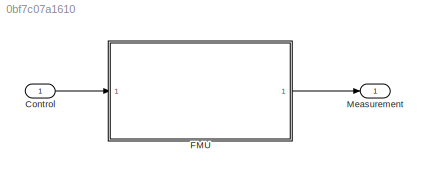
MODEL slx_0bf7c07a1610
KIND model
CONFIG AbsTol = auto
CONFIG EnableMultiTasking = off
CONFIG FixedStep = 1e-06
CONFIG MaxStep = auto
CONFIG MinStep = auto
CONFIG RelTol = 1e-3
CONFIG SampleTimeConstraint = Unconstrained
CONFIG SolverName = FixedStepAuto
CONFIG StartTime = 0.0
CONFIG StopTime = 10.0
WORKSPACE source: mxarray member
WORKSPACE Sig: Simulink.Signal (value not decoded)
BLOCK [Inport] Control
  OutDataTypeStr = Bus: bus3
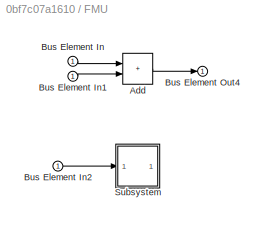
BLOCK [SubSystem] FMU
BLOCK [Sum] FMU/Add
  IconShape = rectangular
BLOCK [Inport] FMU/Bus Element In
BLOCK [Inport] FMU/Bus Element In1
BLOCK [Inport] FMU/Bus Element In2
BLOCK [Outport] FMU/Bus Element Out4
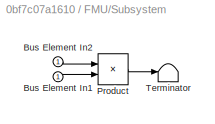
BLOCK [SubSystem] FMU/Subsystem
BLOCK [Inport] FMU/Subsystem/Bus Element In1
BLOCK [Inport] FMU/Subsystem/Bus Element In2
BLOCK [Product] FMU/Subsystem/Product
BLOCK [Terminator] FMU/Subsystem/Terminator
BLOCK [Outport] Measurement
LINE Control:1 -> FMU:1
LINE FMU/Add:1 -> FMU/Bus Element Out4:1
LINE FMU/Bus Element In1:1 -> FMU/Add:2
LINE FMU/Bus Element In2:1 -> FMU/Subsystem:1
LINE FMU/Bus Element In:1 -> FMU/Add:1
LINE FMU/Subsystem/Bus Element In1:1 -> FMU/Subsystem/Product:2
LINE FMU/Subsystem/Bus Element In2:1 -> FMU/Subsystem/Product:1
LINE FMU/Subsystem/Product:1 -> FMU/Subsystem/Terminator:1
LINE FMU:1 -> Measurement:1
